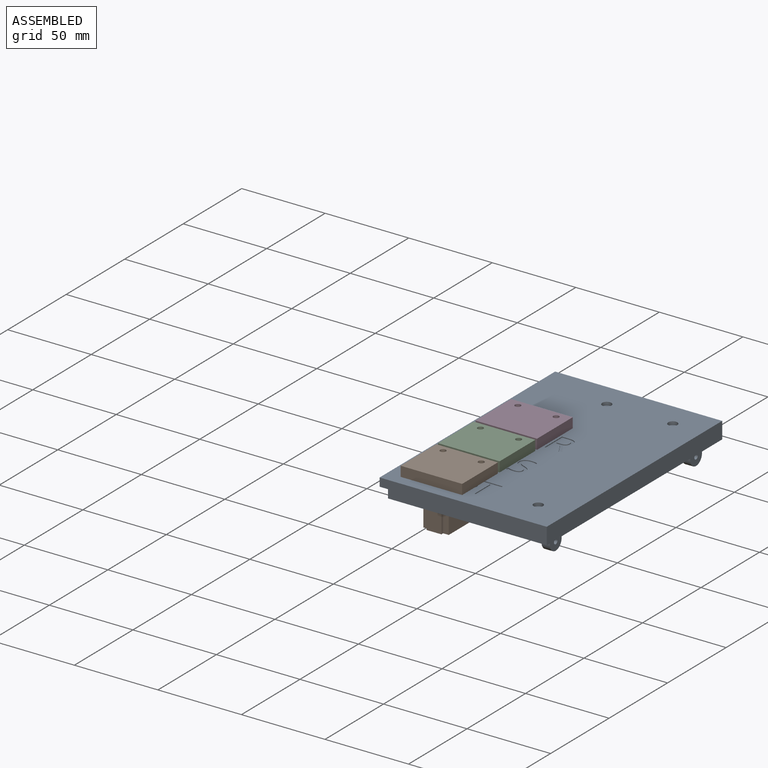
[diagram: assembled view]
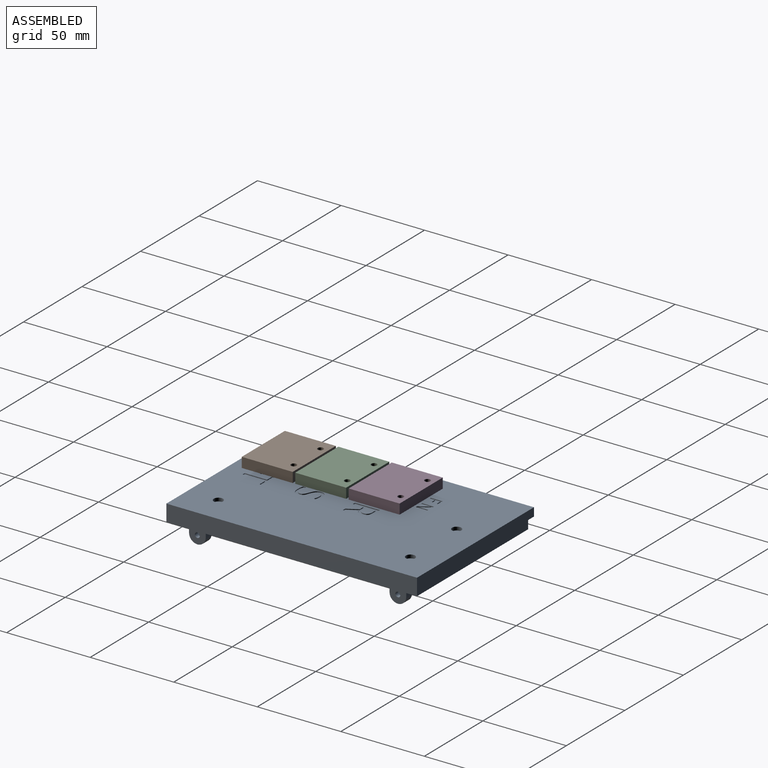
[diagram: assembled view, second angle]
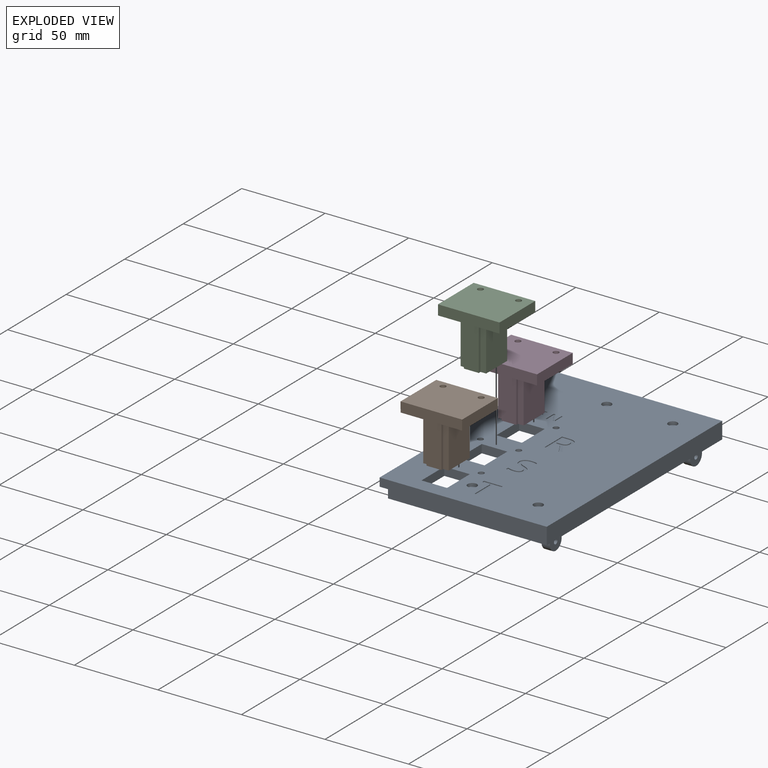
[diagram: exploded view]
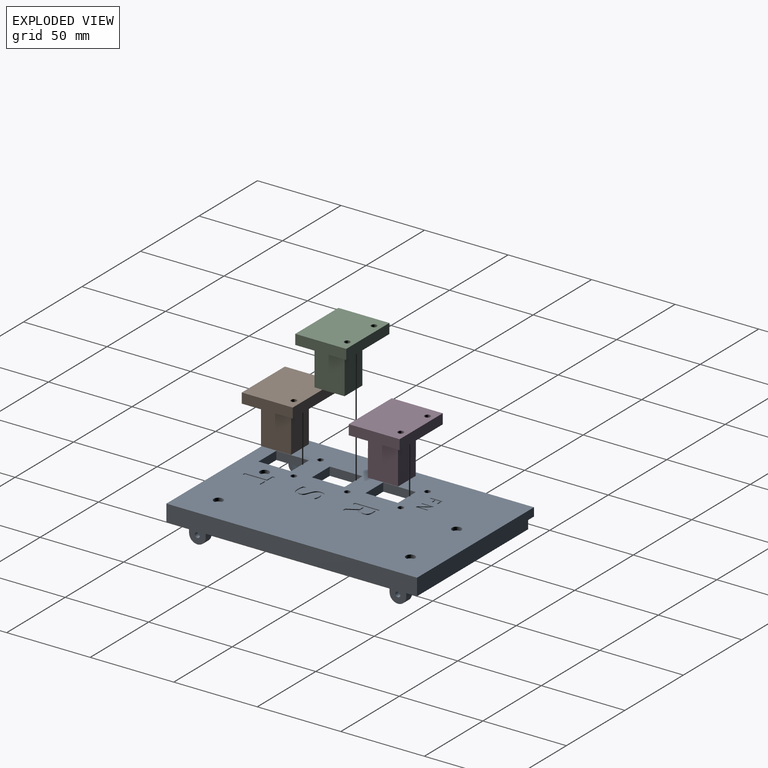
[diagram: exploded view, second angle]
ASSEMBLY  parts=4 mates=3
PART A: 220 faces, bbox 100x150x20 mm
  f0: plane 150x100mm, normal (0,0,-1), area 13741.6mm2, adj f18,f19,f20,f23,f29,f31,f33,f35
  f1: plane 150x95mm, normal (0,0,1), area 12069.5mm2, adj f2,f5,f8,f9,f10,f11,f12,f13
  f2: plane 15x10mm, normal (1,0,0), area 113.1mm2, adj f1,f40,f41,f47,f72,f73,f74,f75
  f3: cylinder r=1.5mm len=3mm, axis (1,0,0), area 23.6mm2, adj f10,f71
  f4: cylinder r=1.5mm len=3mm, axis (1,0,0), area 23.6mm2, adj f9,f70
  f5: plane 10x10mm, normal (-1,0,0), area 63.1mm2, adj f1,f42,f43,f44,f58,f59,f60,f61
  f6: cylinder r=1.5mm len=3mm, axis (1,0,0), area 23.6mm2, adj f13,f57
  f7: cylinder r=1.5mm len=3mm, axis (1,0,0), area 22.6mm2, adj f11,f55
  f8: plane 15x10mm, normal (1,0,0), area 113.1mm2, adj f1,f36,f37,f48,f64,f65,f66,f67
  f9: plane 15x10mm, normal (-1,0,0), area 132.2mm2, adj f1,f4,f36,f37,f48
  f10: plane 15x10mm, normal (-1,0,0), area 132.2mm2, adj f1,f3,f40,f41,f47
  f11: plane 10x10mm, normal (1,0,0), area 82.2mm2, adj f1,f7,f38,f39,f46
  f12: plane 10x10mm, normal (-1,0,0), area 82.2mm2, adj f1,f38,f39,f45,f46
  f13: plane 10x10mm, normal (1,0,0), area 82.2mm2, adj f1,f6,f42,f43,f44
  f14: cylinder r=1.5mm len=3mm, axis (0,0,-1), area 28.3mm2, adj f1,f34
  f15: cylinder r=1.5mm len=3mm, axis (0,0,-1), area 28.3mm2, adj f1,f32
  f16: cylinder r=1.5mm len=3mm, axis (0,0,-1), area 28.3mm2, adj f1,f30
  f17: cylinder r=1.5mm len=3mm, axis (0,0,-1), area 28.3mm2, adj f1,f28
  f18: plane 100x10mm, normal (0,-1,0), area 975mm2, adj f0,f1,f19,f21,f23,f27
  f19: plane 150x5mm, normal (1,0,0), area 750mm2, adj f0,f1,f18,f20
  f20: plane 100x10mm, normal (0,1,0), area 975mm2, adj f0,f1,f19,f21,f23,f26
  f21: plane 150x95mm, normal (0,0,1), area 338mm2, adj f18,f20,f22,f23,f24,f25,f26,f27
  f22: plane 148x5mm, normal (0.78,0,0.62), area 922mm2, adj f1,f21,f24,f25
  f23: plane 150x10mm, normal (-1,0,0), area 1500mm2, adj f0,f18,f20,f21
  f24: plane 94x5mm, normal (0,0.78,0.62), area 589.1mm2, adj f1,f21,f22,f27
  f25: plane 94x5mm, normal (0,-0.78,0.62), area 589.1mm2, adj f1,f21,f22,f26
  f26: plane 5x5mm, normal (1,0,0), area 15mm2, adj f1,f20,f21,f25
  f27: plane 5x5mm, normal (1,0,0), area 15mm2, adj f1,f18,f21,f24
  f28: plane 5.5x5.5mm, normal (0,0,-1), area 16.7mm2, adj f17,f29
  f29: cylinder r=2.75mm len=5.5mm, axis (0,0,-1), area 34.6mm2, adj f0,f28
  f30: plane 5.5x5.5mm, normal (0,0,-1), area 16.7mm2, adj f16,f31
  f31: cylinder r=2.75mm len=5.5mm, axis (0,0,-1), area 34.6mm2, adj f0,f30
  f32: plane 5.5x5.5mm, normal (0,0,-1), area 16.7mm2, adj f15,f33
  f33: cylinder r=2.75mm len=5.5mm, axis (0,0,-1), area 34.6mm2, adj f0,f32
  f34: plane 5.5x5.5mm, normal (0,0,-1), area 16.7mm2, adj f14,f35
  f35: cylinder r=2.75mm len=5.5mm, axis (0,0,-1), area 34.6mm2, adj f0,f34
  f36: plane 10x5mm, normal (0,1,0), area 50mm2, adj f1,f8,f9,f48
  f37: plane 10x5mm, normal (0,-1,0), area 50mm2, adj f1,f8,f9,f48
  f38: plane 5x5mm, normal (0,1,0), area 25mm2, adj f1,f11,f12,f46
  f39: plane 5x5mm, normal (0,-1,0), area 25mm2, adj f1,f11,f12,f46
  f40: plane 10x5mm, normal (0,1,0), area 50mm2, adj f1,f2,f10,f47
  f41: plane 10x5mm, normal (0,-1,0), area 50mm2, adj f1,f2,f10,f47
  f42: plane 5x5mm, normal (0,1,0), area 25mm2, adj f1,f5,f13,f44
  f43: plane 5x5mm, normal (0,-1,0), area 25mm2, adj f1,f5,f13,f44
  f44: cylinder r=5mm len=10mm, axis (1,0,0), area 78.5mm2, adj f5,f13,f42,f43
  f45: cylinder r=1.5mm len=3mm, axis (1,0,0), area 0.9mm2, adj f12,f56
  f46: cylinder r=5mm len=10mm, axis (1,0,0), area 78.5mm2, adj f11,f12,f38,f39
  f47: cylinder r=5mm len=10mm, axis (1,0,0), area 78.5mm2, adj f2,f10,f40,f41
  f48: cylinder r=5mm len=10mm, axis (1,0,0), area 78.5mm2, adj f8,f9,f36,f37
  f49: plane 2.75x2.5mm, normal (0,0.87,0.5), area 7.9mm2, adj f50,f54,f55,f56
  f50: plane 2.75x2.5mm, normal (0,0.87,-0.5), area 7.9mm2, adj f49,f51,f55,f56
  f51: plane 3.18x2.5mm, normal (0,0,-1), area 7.9mm2, adj f50,f52,f55,f56
  f52: plane 2.75x2.5mm, normal (0,-0.87,-0.5), area 7.9mm2, adj f51,f53,f55,f56
  f53: plane 2.75x2.5mm, normal (0,-0.87,0.5), area 7.9mm2, adj f52,f54,f55,f56
  f54: plane 3.18x2.5mm, normal (0,0,1), area 7.9mm2, adj f49,f53,f55,f56
  f55: plane 6.35x5.5mm, normal (-1,0,0), area 19.1mm2, adj f7,f49,f50,f51,f52,f53,f54
  f56: plane 6.35x5.5mm, normal (1,0,0), area 19.1mm2, adj f45,f49,f50,f51,f52,f53,f54
  f57: plane 6.35x5.5mm, normal (-1,0,0), area 19.1mm2, adj f6,f58,f59,f60,f61,f62,f63
  f58: plane 3.18x2.5mm, normal (0,0,-1), area 7.9mm2, adj f5,f57,f59,f63
  f59: plane 2.75x2.5mm, normal (0,-0.87,-0.5), area 7.9mm2, adj f5,f57,f58,f60
  f60: plane 2.75x2.5mm, normal (0,-0.87,0.5), area 7.9mm2, adj f5,f57,f59,f61
  f61: plane 3.18x2.5mm, normal (0,0,1), area 7.9mm2, adj f5,f57,f60,f62
  f62: plane 2.75x2.5mm, normal (0,0.87,0.5), area 7.9mm2, adj f5,f57,f61,f63
  f63: plane 2.75x2.5mm, normal (0,0.87,-0.5), area 7.9mm2, adj f5,f57,f58,f62
  f64: plane 2.75x2.5mm, normal (0,-0.87,0.5), area 7.9mm2, adj f8,f65,f69,f70
  f65: plane 2.75x2.5mm, normal (0,-0.87,-0.5), area 7.9mm2, adj f8,f64,f66,f70
  f66: plane 3.18x2.5mm, normal (0,0,-1), area 7.9mm2, adj f8,f65,f67,f70
  f67: plane 2.75x2.5mm, normal (0,0.87,-0.5), area 7.9mm2, adj f8,f66,f68,f70
  f68: plane 2.75x2.5mm, normal (0,0.87,0.5), area 7.9mm2, adj f8,f67,f69,f70
  f69: plane 3.18x2.5mm, normal (0,0,1), area 7.9mm2, adj f8,f64,f68,f70
  f70: plane 6.35x5.5mm, normal (1,0,0), area 19.1mm2, adj f4,f64,f65,f66,f67,f68,f69
  f71: plane 6.35x5.5mm, normal (1,0,0), area 19.1mm2, adj f3,f72,f73,f74,f75,f76,f77
  f72: plane 3.18x2.5mm, normal (0,0,-1), area 7.9mm2, adj f2,f71,f73,f77
  f73: plane 2.75x2.5mm, normal (0,0.87,-0.5), area 7.9mm2, adj f2,f71,f72,f74
  f74: plane 2.75x2.5mm, normal (0,0.87,0.5), area 7.9mm2, adj f2,f71,f73,f75
  f75: plane 3.18x2.5mm, normal (0,0,1), area 7.9mm2, adj f2,f71,f74,f76
  f76: plane 2.75x2.5mm, normal (0,-0.87,0.5), area 7.9mm2, adj f2,f71,f75,f77
  f77: plane 2.75x2.5mm, normal (0,-0.87,-0.5), area 7.9mm2, adj f2,f71,f72,f76
  f78: plane 2.75x2.5mm, normal (-0.87,-0.5,0), area 7.9mm2, adj f1,f79,f83,f84
  f79: plane 3.18x2.5mm, normal (0,-1,0), area 7.9mm2, adj f1,f78,f80,f84
  f80: plane 2.75x2.5mm, normal (0.87,-0.5,0), area 7.9mm2, adj f1,f79,f81,f84
  f81: plane 2.75x2.5mm, normal (0.87,0.5,0), area 7.9mm2, adj f1,f80,f82,f84
  f82: plane 3.18x2.5mm, normal (0,1,0), area 7.9mm2, adj f1,f81,f83,f84
  f83: plane 2.75x2.5mm, normal (-0.87,0.5,0), area 7.9mm2, adj f1,f78,f82,f84
  f84: plane 6.35x5.5mm, normal (0,0,1), area 17.1mm2, adj f78,f79,f80,f81,f82,f83,f125
  f85: plane 3.18x2.5mm, normal (0,-1,0), area 7.9mm2, adj f1,f86,f90,f91
  f86: plane 2.75x2.5mm, normal (0.87,-0.5,0), area 7.9mm2, adj f1,f85,f87,f91
  f87: plane 2.75x2.5mm, normal (0.87,0.5,0), area 7.9mm2, adj f1,f86,f88,f91
  f88: plane 3.18x2.5mm, normal (0,1,0), area 7.9mm2, adj f1,f87,f89,f91
  f89: plane 2.75x2.5mm, normal (-0.87,0.5,0), area 7.9mm2, adj f1,f88,f90,f91
  f90: plane 2.75x2.5mm, normal (-0.87,-0.5,0), area 7.9mm2, adj f1,f85,f89,f91
  f91: plane 6.35x5.5mm, normal (0,0,1), area 17.1mm2, adj f85,f86,f87,f88,f89,f90,f124
  f92: plane 2.75x2.5mm, normal (-0.87,-0.5,0), area 7.9mm2, adj f1,f93,f97,f98
  f93: plane 3.18x2.5mm, normal (0,-1,0), area 7.9mm2, adj f1,f92,f94,f98
  f94: plane 2.75x2.5mm, normal (0.87,-0.5,0), area 7.9mm2, adj f1,f93,f95,f98
  f95: plane 2.75x2.5mm, normal (0.87,0.5,0), area 7.9mm2, adj f1,f94,f96,f98
  f96: plane 3.18x2.5mm, normal (0,1,0), area 7.9mm2, adj f1,f95,f97,f98
  f97: plane 2.75x2.5mm, normal (-0.87,0.5,0), area 7.9mm2, adj f1,f92,f96,f98
  f98: plane 6.35x5.5mm, normal (0,0,1), area 17.1mm2, adj f92,f93,f94,f95,f96,f97,f123
  f99: plane 2.75x2.5mm, normal (-0.87,-0.5,0), area 7.9mm2, adj f1,f100,f104,f105
  f100: plane 3.18x2.5mm, normal (0,-1,0), area 7.9mm2, adj f1,f99,f101,f105
  f101: plane 2.75x2.5mm, normal (0.87,-0.5,0), area 7.9mm2, adj f1,f100,f102,f105
  f102: plane 2.75x2.5mm, normal (0.87,0.5,0), area 7.9mm2, adj f1,f101,f103,f105
  f103: plane 3.18x2.5mm, normal (0,1,0), area 7.9mm2, adj f1,f102,f104,f105
  f104: plane 2.75x2.5mm, normal (-0.87,0.5,0), area 7.9mm2, adj f1,f99,f103,f105
  f105: plane 6.35x5.5mm, normal (0,0,1), area 17.1mm2, adj f99,f100,f101,f102,f103,f104,f122
  f106: plane 2.75x2.5mm, normal (-0.87,-0.5,0), area 7.9mm2, adj f1,f107,f111,f112
  f107: plane 3.18x2.5mm, normal (0,-1,0), area 7.9mm2, adj f1,f106,f108,f112
  f108: plane 2.75x2.5mm, normal (0.87,-0.5,0), area 7.9mm2, adj f1,f107,f109,f112
  f109: plane 2.75x2.5mm, normal (0.87,0.5,0), area 7.9mm2, adj f1,f108,f110,f112
  f110: plane 3.18x2.5mm, normal (0,1,0), area 7.9mm2, adj f1,f109,f111,f112
  f111: plane 2.75x2.5mm, normal (-0.87,0.5,0), area 7.9mm2, adj f1,f106,f110,f112
  f112: plane 6.35x5.5mm, normal (0,0,1), area 17.1mm2, adj f106,f107,f108,f109,f110,f111,f121
  f113: plane 2.75x2.5mm, normal (-0.87,-0.5,0), area 7.9mm2, adj f1,f114,f118,f119
  f114: plane 3.18x2.5mm, normal (0,-1,0), area 7.9mm2, adj f1,f113,f115,f119
  f115: plane 2.75x2.5mm, normal (0.87,-0.5,0), area 7.9mm2, adj f1,f114,f116,f119
  f116: plane 2.75x2.5mm, normal (0.87,0.5,0), area 7.9mm2, adj f1,f115,f117,f119
  f117: plane 3.18x2.5mm, normal (0,1,0), area 7.9mm2, adj f1,f116,f118,f119
  f118: plane 2.75x2.5mm, normal (-0.87,0.5,0), area 7.9mm2, adj f1,f113,f117,f119
  f119: plane 6.35x5.5mm, normal (0,0,1), area 17.1mm2, adj f113,f114,f115,f116,f117,f118,f120
  f120: cylinder r=1.7mm len=3.4mm, axis (0,0,1), area 26.7mm2, adj f0,f119
  f121: cylinder r=1.7mm len=3.4mm, axis (0,0,1), area 26.7mm2, adj f0,f112
  f122: cylinder r=1.7mm len=3.4mm, axis (0,0,1), area 26.7mm2, adj f0,f105
  f123: cylinder r=1.7mm len=3.4mm, axis (0,0,1), area 26.7mm2, adj f0,f98
  f124: cylinder r=1.7mm len=3.4mm, axis (0,0,1), area 26.7mm2, adj f0,f91
  f125: cylinder r=1.7mm len=3.4mm, axis (0,0,1), area 26.7mm2, adj f0,f84
  f126: plane 15.3x5mm, normal (0,-1,0), area 76.5mm2, adj f0,f1,f127,f129
  f127: plane 19.5x5mm, normal (1,0,0), area 97.5mm2, adj f0,f1,f126,f128
  f128: plane 15.3x5mm, normal (0,1,0), area 76.5mm2, adj f0,f1,f127,f129
  f129: plane 19.5x5mm, normal (-1,0,0), area 97.5mm2, adj f0,f1,f126,f128
  f130: plane 15.3x5mm, normal (0,-1,0), area 76.5mm2, adj f0,f1,f131,f133
  f131: plane 19.5x5mm, normal (1,0,0), area 97.5mm2, adj f0,f1,f130,f132
  f132: plane 15.3x5mm, normal (0,1,0), area 76.5mm2, adj f0,f1,f131,f133
  f133: plane 19.5x5mm, normal (-1,0,0), area 97.5mm2, adj f0,f1,f130,f132
  f134: plane 15.3x5mm, normal (0,-1,0), area 76.5mm2, adj f0,f1,f135,f137
  f135: plane 19.5x5mm, normal (1,0,0), area 97.5mm2, adj f0,f1,f134,f136
  f136: plane 15.3x5mm, normal (0,1,0), area 76.5mm2, adj f0,f1,f135,f137
  f137: plane 19.5x5mm, normal (-1,0,0), area 97.5mm2, adj f0,f1,f134,f136
  f138: extruded ~3.06x1.42mm, area 1.8mm2, adj f0,f139,f162,f163
  f139: extruded ~2.48x0.88mm, area 1.3mm2, adj f0,f138,f140,f163
  f140: extruded ~3.22x1.79mm, area 1.9mm2, adj f0,f139,f141,f163
  f141: extruded ~2.07x0.91mm, area 1.1mm2, adj f0,f140,f142,f163
  f142: extruded ~0.96x0.91mm, area 0.7mm2, adj f0,f141,f143,f163
  f143: extruded ~1.27x0.5mm, area 0.7mm2, adj f0,f142,f144,f163
  f144: extruded ~1.64x0.77mm, area 0.9mm2, adj f0,f143,f145,f163
  f145: extruded ~2.15x0.59mm, area 1.1mm2, adj f0,f144,f146,f163
  f146: extruded ~3.58x0.77mm, area 1.8mm2, adj f0,f145,f147,f163
  f147: plane 1.5x0.54mm, normal (0.94,0.34,0), area 0.8mm2, adj f0,f146,f148,f163
  f148: extruded ~4.08x0.81mm, area 2.1mm2, adj f0,f147,f149,f163
  f149: extruded ~3.42x1.02mm, area 1.8mm2, adj f0,f148,f150,f163
  f150: extruded ~2.74x1.29mm, area 1.6mm2, adj f0,f149,f151,f163
  f151: extruded ~2.65x0.89mm, area 1.4mm2, adj f0,f150,f152,f163
  f152: extruded ~2.96x1.76mm, area 1.7mm2, adj f0,f151,f153,f163
  f153: extruded ~2.21x0.95mm, area 1.2mm2, adj f0,f152,f154,f163
  f154: extruded ~1.04x0.91mm, area 0.7mm2, adj f0,f153,f155,f163
  f155: extruded ~1.26x0.5mm, area 0.7mm2, adj f0,f154,f156,f163
  f156: extruded ~1.83x0.88mm, area 1.1mm2, adj f0,f155,f157,f163
  f157: extruded ~2.6x0.66mm, area 1.4mm2, adj f0,f156,f158,f163
  f158: extruded ~2.14x0.5mm, area 1.1mm2, adj f0,f157,f159,f163
  f159: extruded ~2x0.61mm, area 1mm2, adj f0,f158,f160,f163
  f160: plane 1.67x0.5mm, normal (-1,0,0), area 0.8mm2, adj f0,f159,f161,f163
  f161: extruded ~4.07x0.68mm, area 2.1mm2, adj f0,f160,f162,f163
  f162: extruded ~3.87x1.1mm, area 2mm2, adj f0,f138,f161,f163
  f163: plane 15.29x9.36mm, normal (0,0,-1), area 51.2mm2, adj f138,f139,f140,f141,f142,f143,f144,f145
  f164: plane 2.37x0.5mm, normal (0,-1,0), area 1.2mm2, adj f165,f181,f182,f219
  f165: plane 5.69x0.5mm, normal (1,0,0), area 2.8mm2, adj f164,f166,f182,f219
  f166: plane 2.25x0.5mm, normal (0,1,0), area 1.1mm2, adj f165,f167,f182,f219
  f167: extruded ~2.79x0.65mm, area 1.5mm2, adj f166,f168,f182,f219
  f168: extruded ~2.13x0.87mm, area 1.2mm2, adj f167,f169,f182,f219
  f169: extruded ~2.18x0.85mm, area 1.2mm2, adj f168,f181,f182,f219
  f170: plane 6.19x0.5mm, normal (1,0,0), area 3.1mm2, adj f0,f171,f180,f182
  f171: plane 3.11x0.5mm, normal (0,1,0), area 1.6mm2, adj f0,f170,f172,f182
  f172: plane 6.19x3.6mm, normal (-0.86,0.5,0), area 3.6mm2, adj f0,f171,f173,f182
  f173: plane 2.04x0.5mm, normal (0,1,0), area 1mm2, adj f0,f172,f174,f182
  f174: plane 6.68x4.04mm, normal (0.86,-0.52,0), area 3.9mm2, adj f0,f173,f175,f182
  f175: extruded ~3.99x2.99mm, area 2.7mm2, adj f0,f174,f176,f182
  f176: extruded ~3.15x1.31mm, area 1.8mm2, adj f0,f175,f177,f182
  f177: extruded ~4.04x1.05mm, area 2.1mm2, adj f0,f176,f178,f182
  f178: plane 4.08x0.5mm, normal (0,-1,0), area 2mm2, adj f0,f177,f179,f182
  f179: plane 14.87x0.5mm, normal (-1,0,0), area 7.4mm2, adj f0,f178,f180,f182
  f180: plane 1.73x0.5mm, normal (0,1,0), area 0.9mm2, adj f0,f170,f179,f182
  f181: extruded ~2.68x0.73mm, area 1.4mm2, adj f164,f169,f182,f219
  f182: plane 14.87x10.48mm, normal (0,0,-1), area 66.3mm2, adj f164,f165,f166,f167,f168,f169,f170,f171
  f183: plane 0.92x0.5mm, normal (0,1,0), area 0.5mm2, adj f0,f184,f197,f198
  f184: plane 6.94x0.5mm, normal (1,0,0), area 3.5mm2, adj f0,f183,f185,f198
  f185: plane 0.76x0.5mm, normal (0,-1,0), area 0.4mm2, adj f0,f184,f186,f198
  f186: plane 3.98x0.5mm, normal (-1,0,0), area 2mm2, adj f0,f185,f187,f198
  f187: extruded ~1x0.5mm, area 0.5mm2, adj f0,f186,f188,f198
  f188: extruded ~0.82x0.5mm, area 0.4mm2, adj f0,f187,f189,f198
  f189: plane 0.5x0.04mm, normal (0,-1,0), area 0mm2, adj f0,f188,f190,f198
  f190: plane 5.8x3.78mm, normal (0.84,-0.55,0), area 3.5mm2, adj f0,f189,f191,f198
  f191: plane 0.91x0.5mm, normal (0,-1,0), area 0.5mm2, adj f0,f190,f192,f198
  f192: plane 6.94x0.5mm, normal (-1,0,0), area 3.5mm2, adj f0,f191,f193,f198
  f193: plane 0.75x0.5mm, normal (0,1,0), area 0.4mm2, adj f0,f192,f194,f198
  f194: plane 3.95x0.5mm, normal (1,0,0), area 2mm2, adj f0,f193,f195,f198
  f195: extruded ~1.88x0.5mm, area 0.9mm2, adj f0,f194,f196,f198
  f196: plane 0.5x0.04mm, normal (0,1,0), area 0mm2, adj f0,f195,f197,f198
  f197: plane 5.82x3.79mm, normal (-0.84,0.55,0), area 3.5mm2, adj f0,f183,f196,f198
  f198: plane 6.94x5.42mm, normal (0,0,-1), area 15.9mm2, adj f183,f184,f185,f186,f187,f188,f189,f190
  f199: plane 0.81x0.5mm, normal (0,1,0), area 0.4mm2, adj f0,f200,f208,f209
  f200: plane 2.97x0.5mm, normal (1,0,0), area 1.5mm2, adj f0,f199,f201,f209
  f201: plane 2.88x0.5mm, normal (0,1,0), area 1.4mm2, adj f0,f200,f202,f209
  f202: plane 0.72x0.5mm, normal (1,0,0), area 0.4mm2, adj f0,f201,f203,f209
  f203: plane 2.88x0.5mm, normal (0,-1,0), area 1.4mm2, adj f0,f202,f204,f209
  f204: plane 2.54x0.5mm, normal (1,0,0), area 1.3mm2, adj f0,f203,f205,f209
  f205: plane 3.06x0.5mm, normal (0,1,0), area 1.5mm2, adj f0,f204,f206,f209
  f206: plane 0.72x0.5mm, normal (1,0,0), area 0.4mm2, adj f0,f205,f207,f209
  f207: plane 3.87x0.5mm, normal (0,-1,0), area 1.9mm2, adj f0,f206,f208,f209
  f208: plane 6.94x0.5mm, normal (-1,0,0), area 3.5mm2, adj f0,f199,f207,f209
  f209: plane 6.94x3.87mm, normal (0,0,-1), area 9.9mm2, adj f199,f200,f201,f202,f203,f204,f205,f206
  f210: plane 1.73x0.5mm, normal (0,1,0), area 0.9mm2, adj f0,f211,f217,f218
  f211: plane 13.34x0.5mm, normal (1,0,0), area 6.7mm2, adj f0,f210,f212,f218
  f212: plane 4.71x0.5mm, normal (0,1,0), area 2.4mm2, adj f0,f211,f213,f218
  f213: plane 1.54x0.5mm, normal (1,0,0), area 0.8mm2, adj f0,f212,f214,f218
  f214: plane 11.15x0.5mm, normal (0,-1,0), area 5.6mm2, adj f0,f213,f215,f218
  f215: plane 1.54x0.5mm, normal (-1,0,0), area 0.8mm2, adj f0,f214,f216,f218
  f216: plane 4.71x0.5mm, normal (0,1,0), area 2.4mm2, adj f0,f215,f217,f218
  f217: plane 13.34x0.5mm, normal (-1,0,0), area 6.7mm2, adj f0,f210,f216,f218
  f218: plane 14.87x11.15mm, normal (0,0,-1), area 40.2mm2, adj f210,f211,f212,f213,f214,f215,f216,f217
  f219: plane 5.91x5.69mm, normal (0,0,-1), area 30.4mm2, adj f164,f165,f166,f167,f168,f169,f181
PART B: 17 faces, bbox 36.9x30.5x32 mm
  f0: plane 36.86x30.5mm, normal (0,0,1), area 818.7mm2, adj f1,f2,f3,f4,f6,f7,f8,f9
  f1: plane 30.5x6mm, normal (1,0,0), area 183mm2, adj f0,f2,f4,f5
  f2: plane 36.86x6mm, normal (0,1,0), area 221.2mm2, adj f0,f1,f3,f5
  f3: plane 30.5x6mm, normal (-1,0,0), area 183mm2, adj f0,f2,f4,f5
  f4: plane 36.86x6mm, normal (0,-1,0), area 221.2mm2, adj f0,f1,f3,f5
  f5: plane 36.86x30.5mm, normal (0,0,-1), area 1106.1mm2, adj f1,f2,f3,f4,f6,f7
  f6: cylinder r=1.7mm len=6mm, axis (0,0,1), area 64.1mm2, adj f0,f5
  f7: cylinder r=1.7mm len=6mm, axis (0,0,1), area 64.1mm2, adj f0,f5
  f8: plane 26x18mm, normal (-1,0,0), area 468mm2, adj f0,f9,f15,f16
  f9: plane 26x3.35mm, normal (0,-1,0), area 87mm2, adj f0,f8,f10,f16
  f10: plane 26x1.5mm, normal (-1,0,0), area 39mm2, adj f0,f9,f11,f16
  f11: plane 26x8.91mm, normal (0,-1,0), area 231.8mm2, adj f0,f10,f12,f16
  f12: plane 26x1.5mm, normal (1,0,0), area 39mm2, adj f0,f11,f13,f16
  f13: plane 26x2.96mm, normal (0,-1,0), area 77mm2, adj f0,f12,f14,f16
  f14: plane 26x18mm, normal (1,0,0), area 468mm2, adj f0,f13,f15,f16
  f15: plane 26x15.22mm, normal (0,1,0), area 395.7mm2, adj f0,f8,f14,f16
  f16: plane 19.5x15.22mm, normal (0,0,1), area 287.3mm2, adj f8,f9,f10,f11,f12,f13,f14,f15
PART C: same geometry as B
PART D: same geometry as B
PLACE A rot(axis=(0,1,0),180deg) t=(-66.94,-11.27,7.88)mm
PLACE B rot(axis=(0,1,0),180deg) t=(-90.52,-64.52,13.87)mm
PLACE C rot(axis=(0,1,0),180deg) t=(-90.52,-32.52,13.87)mm
PLACE D rot(axis=(0,1,0),180deg) t=(-90.52,-0.52,13.87)mm
MATE planar C.f0 <-> A.f0  axis (0,0,-1) through (-90.51,-25.82,7.87)mm
MATE planar D.f0 <-> A.f0  axis (0,0,-1) through (-90.51,6.18,7.87)mm
MATE planar B.f0 <-> A.f0  axis (0,0,-1) through (-90.51,-57.82,7.87)mm
